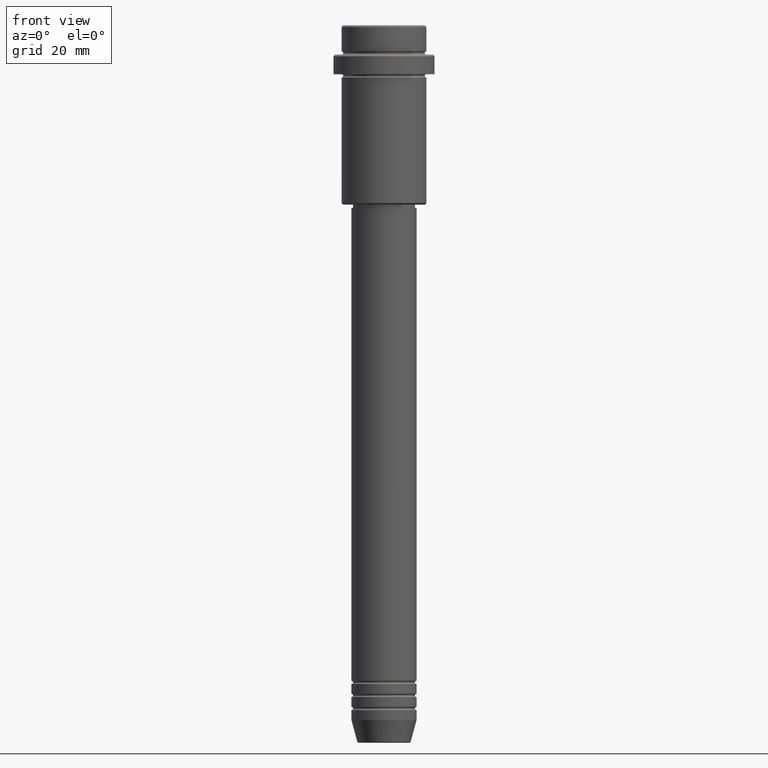
[diagram: clean part render]
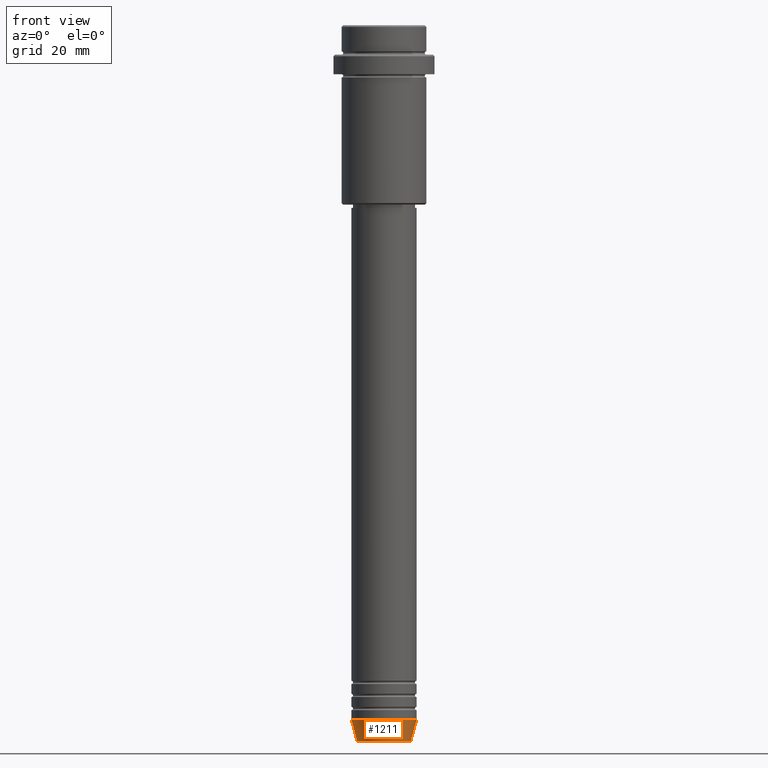
[diagram: same view with one face highlighted and labeled with its STEP entity id]
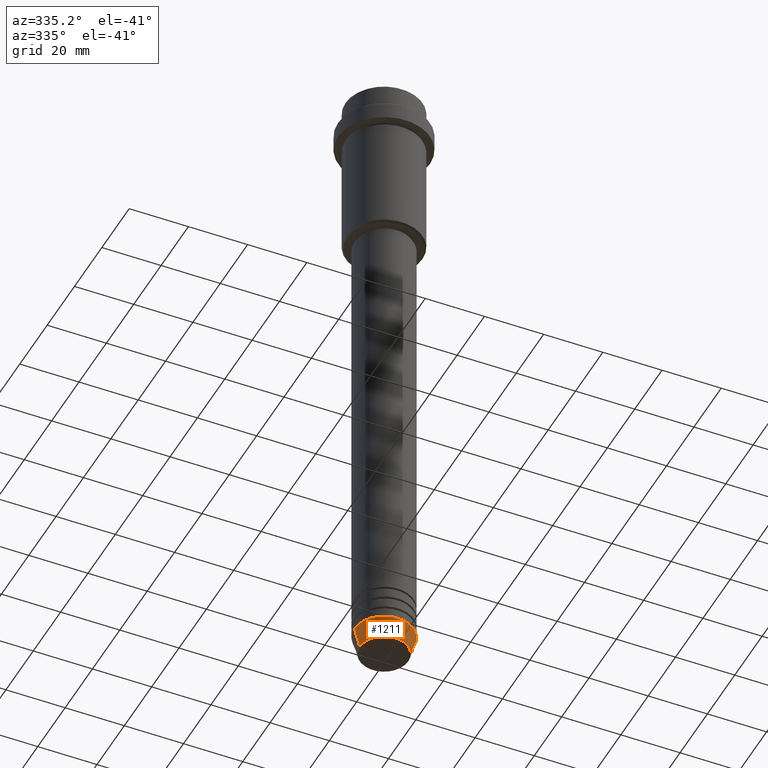
[diagram: same view with one face highlighted and labeled with its STEP entity id]
A machine part, front view. The second image highlights one B-rep face of the part: STEP entity #1211.
A second angle (auxiliary view) of the same face is appended — the face is thin or edge-on in the first view.
In plain terms, the highlighted conical surface has half-angle 15 deg.
Its self-contained STEP definition (entity closure, byte-faithful):
#10 = CIRCLE ( 'NONE', #1260, 8.223655072137189492 ) ;
#34 = LINE ( 'NONE', #579, #766 ) ;
#92 = CARTESIAN_POINT ( 'NONE',  ( 0.000000000000000000, 0.000000000000000000, -219.6294095225512706 ) ) ;
#109 = CARTESIAN_POINT ( 'NONE',  ( -10.00000000000000000, 1.224646799147353256E-15, -213.0000000000000284 ) ) ;
#114 = CARTESIAN_POINT ( 'NONE',  ( 10.00000000000000000, 0.000000000000000000, -213.0000000000000284 ) ) ;
#132 = ORIENTED_EDGE ( 'NONE', *, *, #452, .F. ) ;
#169 = CARTESIAN_POINT ( 'NONE',  ( -8.223655072137189492, 1.115877042642911856E-15, -219.6294095225512706 ) ) ;
#175 = EDGE_CURVE ( 'NONE', #1079, #1181, #1153, .T. ) ;
#216 = FACE_OUTER_BOUND ( 'NONE', #983, .T. ) ;
#237 = DIRECTION ( 'NONE',  ( -0.000000000000000000, -0.000000000000000000, 1.000000000000000000 ) ) ;
#238 = VERTEX_POINT ( 'NONE', #169 ) ;
#264 = DIRECTION ( 'NONE',  ( -0.000000000000000000, -0.000000000000000000, 1.000000000000000000 ) ) ;
#286 = VERTEX_POINT ( 'NONE', #109 ) ;
#403 = DIRECTION ( 'NONE',  ( -0.000000000000000000, -0.000000000000000000, 1.000000000000000000 ) ) ;
#452 = EDGE_CURVE ( 'NONE', #286, #1181, #552, .T. ) ;
#459 = CARTESIAN_POINT ( 'NONE',  ( 0.000000000000000000, 0.000000000000000000, -213.0000000000000284 ) ) ;
#512 = CARTESIAN_POINT ( 'NONE',  ( 8.223655072137189492, 0.000000000000000000, -219.6294095225512706 ) ) ;
#530 = ORIENTED_EDGE ( 'NONE', *, *, #606, .T. ) ;
#552 = CIRCLE ( 'NONE', #827, 10.00000000000000000 ) ;
#579 = CARTESIAN_POINT ( 'NONE',  ( -10.00000000000000000, 1.224646799147353256E-15, -213.0000000000000284 ) ) ;
#606 = EDGE_CURVE ( 'NONE', #238, #1079, #10, .T. ) ;
#689 = ORIENTED_EDGE ( 'NONE', *, *, #175, .T. ) ;
#696 = DIRECTION ( 'NONE',  ( 1.000000000000000000, 0.000000000000000000, 0.000000000000000000 ) ) ;
#766 = VECTOR ( 'NONE', #1020, 1000.000000000000114 ) ;
#785 = CONICAL_SURFACE ( 'NONE', #883, 10.00000000000000000, 0.2617993877991502405 ) ;
#809 = DIRECTION ( 'NONE',  ( 0.2588190451025214611, 0.000000000000000000, 0.9659258262890679791 ) ) ;
#827 = AXIS2_PLACEMENT_3D ( 'NONE', #459, #264, #696 ) ;
#837 = DIRECTION ( 'NONE',  ( 1.000000000000000000, 0.000000000000000000, 0.000000000000000000 ) ) ;
#865 = ORIENTED_EDGE ( 'NONE', *, *, #1277, .F. ) ;
#880 = DIRECTION ( 'NONE',  ( 1.000000000000000000, 0.000000000000000000, 0.000000000000000000 ) ) ;
#883 = AXIS2_PLACEMENT_3D ( 'NONE', #971, #237, #880 ) ;
#971 = CARTESIAN_POINT ( 'NONE',  ( 0.000000000000000000, 0.000000000000000000, -213.0000000000000284 ) ) ;
#983 = EDGE_LOOP ( 'NONE', ( #865, #530, #689, #132 ) ) ;
#1020 = DIRECTION ( 'NONE',  ( -0.2588190451025214611, 3.169619151431774186E-17, 0.9659258262890679791 ) ) ;
#1050 = CARTESIAN_POINT ( 'NONE',  ( 10.00000000000000000, 0.000000000000000000, -213.0000000000000284 ) ) ;
#1079 = VERTEX_POINT ( 'NONE', #512 ) ;
#1153 = LINE ( 'NONE', #1050, #1216 ) ;
#1181 = VERTEX_POINT ( 'NONE', #114 ) ;
#1211 = ADVANCED_FACE ( 'NONE', ( #216 ), #785, .T. ) ;
#1216 = VECTOR ( 'NONE', #809, 1000.000000000000114 ) ;
#1260 = AXIS2_PLACEMENT_3D ( 'NONE', #92, #403, #837 ) ;
#1277 = EDGE_CURVE ( 'NONE', #238, #286, #34, .T. ) ;